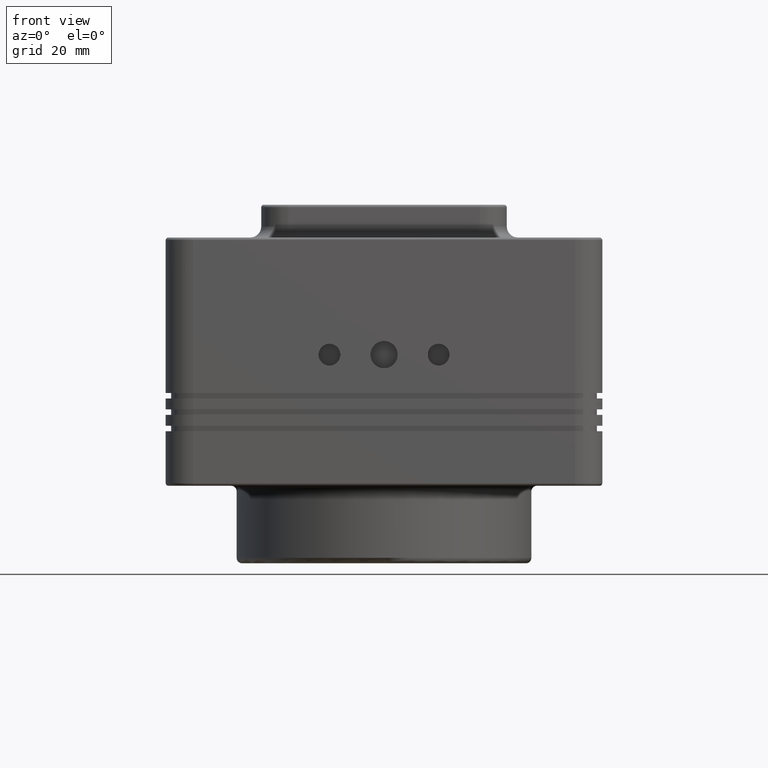
[diagram: clean part render]
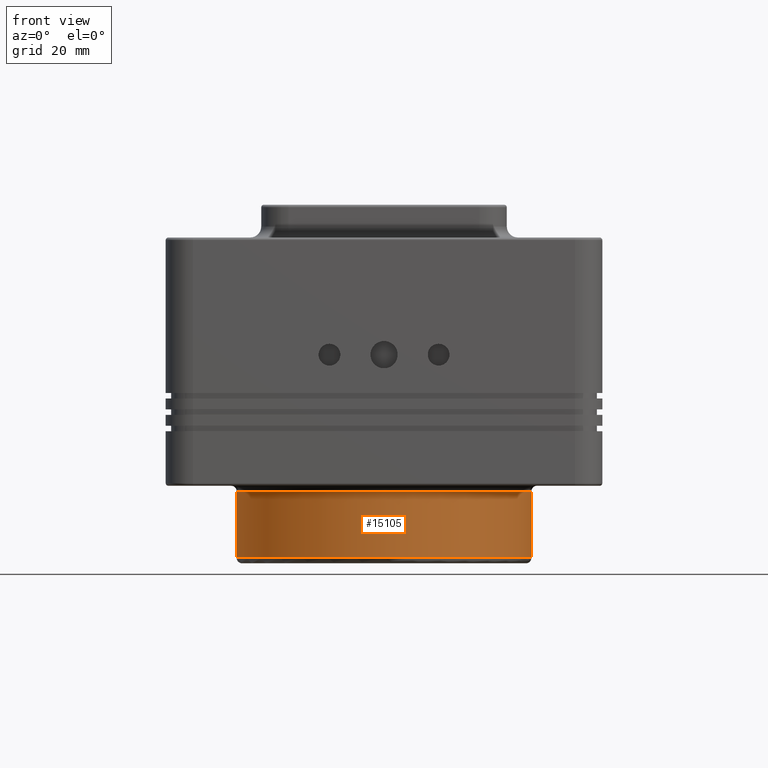
[diagram: same view with one face highlighted and labeled with its STEP entity id]
A machine part, front view. The second image highlights one B-rep face of the part: STEP entity #15105.
In plain terms, the highlighted cylindrical surface (bore or boss wall) has radius 27 mm, axis along (-0, -0, 1).
Its self-contained STEP definition (entity closure, byte-faithful):
#1489 = CARTESIAN_POINT ( 'NONE',  ( 0.000000000000000000, 0.000000000000000000, -16.80000000000000071 ) ) ;
#2981 = EDGE_LOOP ( 'NONE', ( #10148 ) ) ;
#3317 = CARTESIAN_POINT ( 'NONE',  ( 27.00000000000000000, 0.000000000000000000, -16.80000000000000071 ) ) ;
#4406 = CARTESIAN_POINT ( 'NONE',  ( -27.00000000000000000, 0.000000000000000000, -28.99999999999999645 ) ) ;
#4552 = DIRECTION ( 'NONE',  ( -1.000000000000000000, 0.000000000000000000, 0.000000000000000000 ) ) ;
#5374 = CIRCLE ( 'NONE', #28984, 27.00000000000000000 ) ;
#8894 = AXIS2_PLACEMENT_3D ( 'NONE', #44892, #23586, #27291 ) ;
#9406 = CYLINDRICAL_SURFACE ( 'NONE', #8894, 27.00000000000000000 ) ;
#10148 = ORIENTED_EDGE ( 'NONE', *, *, #44569, .T. ) ;
#15105 = ADVANCED_FACE ( 'NONE', ( #30549, #37723 ), #9406, .T. ) ;
#21333 = EDGE_CURVE ( 'NONE', #41564, #41564, #5374, .T. ) ;
#23548 = EDGE_LOOP ( 'NONE', ( #44578 ) ) ;
#23586 = DIRECTION ( 'NONE',  ( -0.000000000000000000, -0.000000000000000000, 1.000000000000000000 ) ) ;
#24368 = AXIS2_PLACEMENT_3D ( 'NONE', #43281, #35425, #4552 ) ;
#26303 = DIRECTION ( 'NONE',  ( -0.000000000000000000, -0.000000000000000000, -1.000000000000000000 ) ) ;
#26660 = VERTEX_POINT ( 'NONE', #4406 ) ;
#27291 = DIRECTION ( 'NONE',  ( 1.000000000000000000, 0.000000000000000000, 0.000000000000000000 ) ) ;
#28984 = AXIS2_PLACEMENT_3D ( 'NONE', #1489, #26303, #36957 ) ;
#30549 = FACE_OUTER_BOUND ( 'NONE', #23548, .T. ) ;
#35425 = DIRECTION ( 'NONE',  ( -0.000000000000000000, -0.000000000000000000, 1.000000000000000000 ) ) ;
#36957 = DIRECTION ( 'NONE',  ( 1.000000000000000000, 0.000000000000000000, 0.000000000000000000 ) ) ;
#37723 = FACE_OUTER_BOUND ( 'NONE', #2981, .T. ) ;
#38417 = CIRCLE ( 'NONE', #24368, 27.00000000000000000 ) ;
#41564 = VERTEX_POINT ( 'NONE', #3317 ) ;
#43281 = CARTESIAN_POINT ( 'NONE',  ( 0.000000000000000000, 0.000000000000000000, -28.99999999999999645 ) ) ;
#44569 = EDGE_CURVE ( 'NONE', #26660, #26660, #38417, .T. ) ;
#44578 = ORIENTED_EDGE ( 'NONE', *, *, #21333, .T. ) ;
#44892 = CARTESIAN_POINT ( 'NONE',  ( 0.000000000000000000, 0.000000000000000000, -30.00000000000000000 ) ) ;